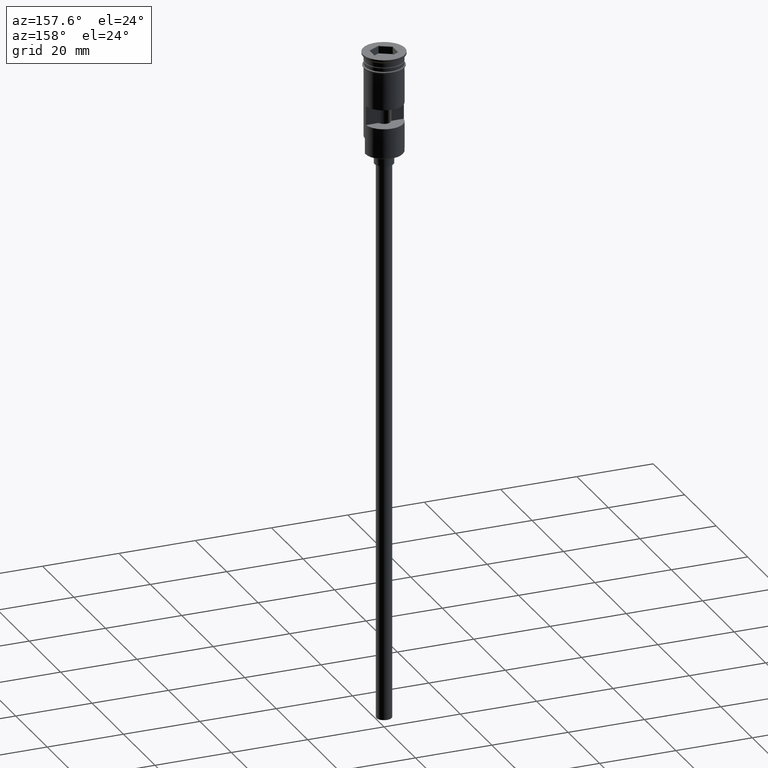
[diagram: clean part render]
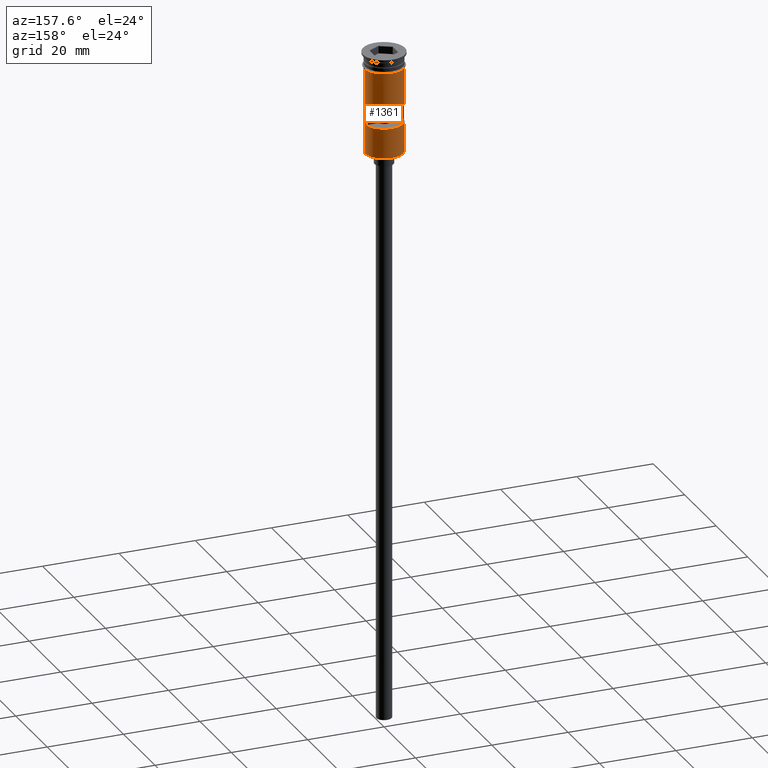
[diagram: same view with one face highlighted and labeled with its STEP entity id]
A machine part, auxiliary view. The second image highlights one B-rep face of the part: STEP entity #1361.
In plain terms, the highlighted cylindrical surface (edge-blend (fillet) strip) has radius 5 mm, axis along (-0, -0, 1).
Its self-contained STEP definition (entity closure, byte-faithful):
#7 = ORIENTED_EDGE ( 'NONE', *, *, #937, .F. ) ;
#24 = ORIENTED_EDGE ( 'NONE', *, *, #1541, .F. ) ;
#25 = DIRECTION ( 'NONE',  ( 0.000000000000000000, 0.000000000000000000, 1.000000000000000000 ) ) ;
#27 = DIRECTION ( 'NONE',  ( -0.000000000000000000, -0.000000000000000000, 1.000000000000000000 ) ) ;
#61 = VECTOR ( 'NONE', #122, 1000.000000000000000 ) ;
#75 = DIRECTION ( 'NONE',  ( -0.000000000000000000, -0.000000000000000000, 1.000000000000000000 ) ) ;
#89 = CARTESIAN_POINT ( 'NONE',  ( 0.000000000000000000, 0.000000000000000000, -26.30000000000000071 ) ) ;
#99 = CARTESIAN_POINT ( 'NONE',  ( -4.999999999999993783, 0.000000000000000000, -26.50000000000000000 ) ) ;
#111 = DIRECTION ( 'NONE',  ( -0.000000000000000000, -3.942553354492746489E-16, -1.000000000000000000 ) ) ;
#122 = DIRECTION ( 'NONE',  ( -0.000000000000000000, -0.000000000000000000, 1.000000000000000000 ) ) ;
#149 = EDGE_LOOP ( 'NONE', ( #758, #679, #24, #704, #267, #252 ) ) ;
#167 = CYLINDRICAL_SURFACE ( 'NONE', #320, 4.999999999999996447 ) ;
#184 = CIRCLE ( 'NONE', #446, 4.999999999999996447 ) ;
#189 = CARTESIAN_POINT ( 'NONE',  ( 0.000000000000000000, 0.000000000000000000, 0.000000000000000000 ) ) ;
#222 = EDGE_CURVE ( 'NONE', #468, #898, #936, .T. ) ;
#252 = ORIENTED_EDGE ( 'NONE', *, *, #581, .T. ) ;
#266 = EDGE_CURVE ( 'NONE', #1282, #717, #1215, .T. ) ;
#267 = ORIENTED_EDGE ( 'NONE', *, *, #222, .F. ) ;
#269 = EDGE_CURVE ( 'NONE', #1570, #508, #184, .T. ) ;
#315 = LINE ( 'NONE', #1334, #551 ) ;
#320 = AXIS2_PLACEMENT_3D ( 'NONE', #189, #908, #662 ) ;
#329 = VERTEX_POINT ( 'NONE', #872 ) ;
#337 = VECTOR ( 'NONE', #826, 1000.000000000000000 ) ;
#385 = CARTESIAN_POINT ( 'NONE',  ( 0.000000000000000000, 0.000000000000000000, -18.50000000000000355 ) ) ;
#419 = AXIS2_PLACEMENT_3D ( 'NONE', #89, #582, #1464 ) ;
#446 = AXIS2_PLACEMENT_3D ( 'NONE', #385, #25, #1234 ) ;
#468 = VERTEX_POINT ( 'NONE', #665 ) ;
#481 = CARTESIAN_POINT ( 'NONE',  ( -4.999999999999993783, 0.000000000000000000, -22.30000000000001137 ) ) ;
#508 = VERTEX_POINT ( 'NONE', #519 ) ;
#519 = CARTESIAN_POINT ( 'NONE',  ( -4.963869458396339418, 0.5999999999999998668, -18.50000000000000355 ) ) ;
#551 = VECTOR ( 'NONE', #809, 1000.000000000000000 ) ;
#562 = EDGE_CURVE ( 'NONE', #911, #719, #1187, .T. ) ;
#568 = ORIENTED_EDGE ( 'NONE', *, *, #269, .F. ) ;
#581 = EDGE_CURVE ( 'NONE', #468, #911, #1166, .T. ) ;
#582 = DIRECTION ( 'NONE',  ( 0.000000000000000000, 0.000000000000000000, 1.000000000000000000 ) ) ;
#605 = CARTESIAN_POINT ( 'NONE',  ( 4.963869458396339418, 0.5999999999999998668, -13.49999999999999822 ) ) ;
#608 = DIRECTION ( 'NONE',  ( 0.000000000000000000, -1.000000000000000000, 3.469446951953616654E-16 ) ) ;
#618 = EDGE_CURVE ( 'NONE', #508, #1282, #315, .T. ) ;
#629 = EDGE_CURVE ( 'NONE', #898, #329, #1048, .T. ) ;
#640 = CARTESIAN_POINT ( 'NONE',  ( 4.999999999999996447, 6.123233995736761352E-16, -22.30000000000001137 ) ) ;
#645 = CARTESIAN_POINT ( 'NONE',  ( -4.963869458396339418, 0.5999999999999998668, -13.49999999999999822 ) ) ;
#647 = VECTOR ( 'NONE', #932, 1000.000000000000000 ) ;
#662 = DIRECTION ( 'NONE',  ( 1.000000000000000000, 0.000000000000000000, 0.000000000000000000 ) ) ;
#665 = CARTESIAN_POINT ( 'NONE',  ( 4.999999999999993783, 6.123233995736758394E-16, -26.30000000000000071 ) ) ;
#679 = ORIENTED_EDGE ( 'NONE', *, *, #1604, .T. ) ;
#704 = ORIENTED_EDGE ( 'NONE', *, *, #629, .F. ) ;
#717 = VERTEX_POINT ( 'NONE', #605 ) ;
#719 = VERTEX_POINT ( 'NONE', #481 ) ;
#728 = CARTESIAN_POINT ( 'NONE',  ( 4.963869458396339418, 0.5999999999999998668, -18.50000000000000355 ) ) ;
#742 = CARTESIAN_POINT ( 'NONE',  ( 0.000000000000000000, 0.000000000000000000, -13.49999999999999822 ) ) ;
#758 = ORIENTED_EDGE ( 'NONE', *, *, #562, .T. ) ;
#805 = VECTOR ( 'NONE', #75, 1000.000000000000000 ) ;
#809 = DIRECTION ( 'NONE',  ( -0.000000000000000000, -0.000000000000000000, 1.000000000000000000 ) ) ;
#826 = DIRECTION ( 'NONE',  ( -0.000000000000000000, -0.000000000000000000, 1.000000000000000000 ) ) ;
#853 = DIRECTION ( 'NONE',  ( 1.000000000000000000, 0.000000000000000000, 0.000000000000000000 ) ) ;
#872 = CARTESIAN_POINT ( 'NONE',  ( 4.999999999999999112, 0.000000000000000000, -3.799999999999998934 ) ) ;
#881 = AXIS2_PLACEMENT_3D ( 'NONE', #742, #111, #608 ) ;
#882 = VECTOR ( 'NONE', #1298, 1000.000000000000000 ) ;
#898 = VERTEX_POINT ( 'NONE', #640 ) ;
#899 = FACE_OUTER_BOUND ( 'NONE', #149, .T. ) ;
#908 = DIRECTION ( 'NONE',  ( -0.000000000000000000, -0.000000000000000000, 1.000000000000000000 ) ) ;
#911 = VERTEX_POINT ( 'NONE', #1519 ) ;
#920 = LINE ( 'NONE', #1185, #647 ) ;
#932 = DIRECTION ( 'NONE',  ( 0.000000000000000000, 0.000000000000000000, -1.000000000000000000 ) ) ;
#936 = LINE ( 'NONE', #950, #337 ) ;
#937 = EDGE_CURVE ( 'NONE', #717, #1570, #920, .T. ) ;
#950 = CARTESIAN_POINT ( 'NONE',  ( 4.999999999999993783, 6.123233995736758394E-16, -26.50000000000000000 ) ) ;
#1048 = LINE ( 'NONE', #1560, #805 ) ;
#1157 = ORIENTED_EDGE ( 'NONE', *, *, #618, .F. ) ;
#1166 = CIRCLE ( 'NONE', #419, 4.999999999999996447 ) ;
#1169 = CIRCLE ( 'NONE', #1438, 4.999999999999999112 ) ;
#1185 = CARTESIAN_POINT ( 'NONE',  ( 4.963869458396339418, 0.5999999999999998668, 0.000000000000000000 ) ) ;
#1187 = LINE ( 'NONE', #99, #882 ) ;
#1207 = CARTESIAN_POINT ( 'NONE',  ( -4.999999999999999112, 6.123233995736765296E-16, -3.799999999999998934 ) ) ;
#1215 = CIRCLE ( 'NONE', #881, 4.999999999999996447 ) ;
#1221 = LINE ( 'NONE', #1373, #61 ) ;
#1233 = ORIENTED_EDGE ( 'NONE', *, *, #266, .F. ) ;
#1234 = DIRECTION ( 'NONE',  ( -1.000000000000000000, 0.000000000000000000, 0.000000000000000000 ) ) ;
#1252 = CARTESIAN_POINT ( 'NONE',  ( 0.000000000000000000, 0.000000000000000000, -3.799999999999998934 ) ) ;
#1282 = VERTEX_POINT ( 'NONE', #645 ) ;
#1298 = DIRECTION ( 'NONE',  ( -0.000000000000000000, -0.000000000000000000, 1.000000000000000000 ) ) ;
#1334 = CARTESIAN_POINT ( 'NONE',  ( -4.963869458396339418, 0.5999999999999998668, 0.000000000000000000 ) ) ;
#1361 = ADVANCED_FACE ( 'NONE', ( #1526, #899 ), #167, .T. ) ;
#1373 = CARTESIAN_POINT ( 'NONE',  ( -4.999999999999996447, 6.123233995736762338E-16, 0.000000000000000000 ) ) ;
#1437 = VERTEX_POINT ( 'NONE', #1207 ) ;
#1438 = AXIS2_PLACEMENT_3D ( 'NONE', #1252, #27, #853 ) ;
#1450 = EDGE_LOOP ( 'NONE', ( #7, #1233, #1157, #568 ) ) ;
#1464 = DIRECTION ( 'NONE',  ( -1.000000000000000000, 0.000000000000000000, 0.000000000000000000 ) ) ;
#1519 = CARTESIAN_POINT ( 'NONE',  ( -4.999999999999993783, 0.000000000000000000, -26.30000000000000071 ) ) ;
#1526 = FACE_BOUND ( 'NONE', #1450, .T. ) ;
#1541 = EDGE_CURVE ( 'NONE', #329, #1437, #1169, .T. ) ;
#1560 = CARTESIAN_POINT ( 'NONE',  ( 4.999999999999996447, 0.000000000000000000, 0.000000000000000000 ) ) ;
#1570 = VERTEX_POINT ( 'NONE', #728 ) ;
#1604 = EDGE_CURVE ( 'NONE', #719, #1437, #1221, .T. ) ;